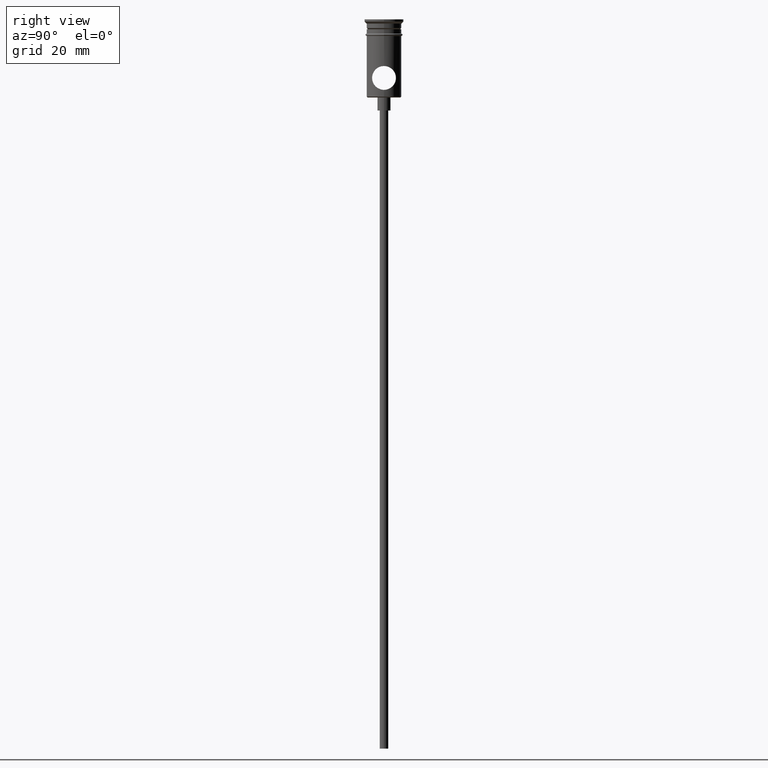
[diagram: clean part render]
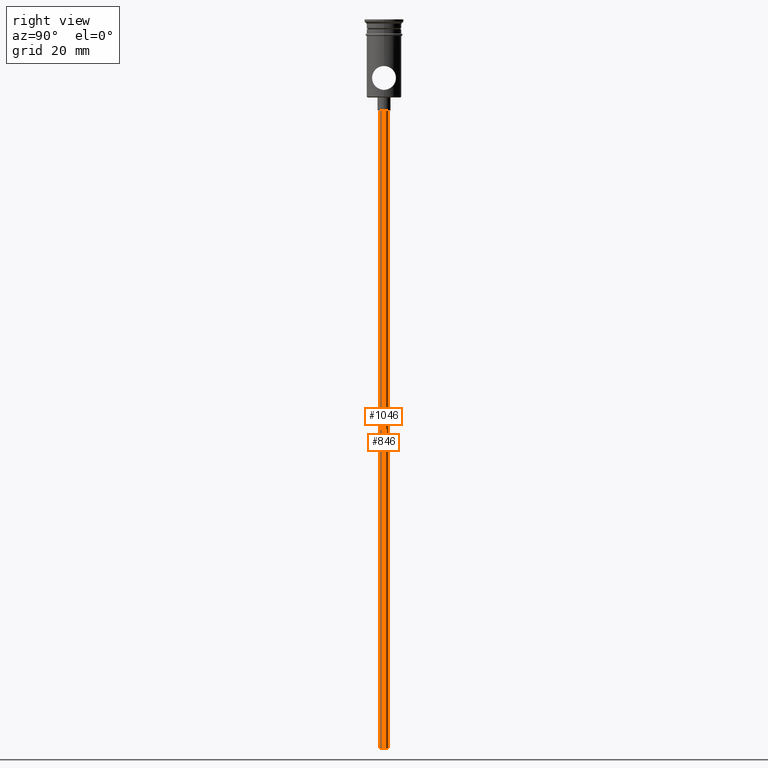
[diagram: same view with one multi-face feature highlighted, each face labeled with its STEP entity id]
A machine part, right view. The highlighted faces form ONE feature: a constant-radius fillet chain: 2 tangent blend faces with common blend radius 1 mm. The faces share edges in the B-rep.
Their STEP definitions:
[1] entity #1046 (Cylinder):
#35 = CARTESIAN_POINT ( 'NONE',  ( 0.9999999999999997780, 0.000000000000000000, -167.9999999999999716 ) ) ;
#68 = ORIENTED_EDGE ( 'NONE', *, *, #696, .T. ) ;
#71 = EDGE_LOOP ( 'NONE', ( #380, #670, #68, #663 ) ) ;
#81 = CARTESIAN_POINT ( 'NONE',  ( 0.000000000000000000, 0.000000000000000000, -167.9999999999999716 ) ) ;
#88 = CARTESIAN_POINT ( 'NONE',  ( -0.9999999999999997780, 1.224646799147352961E-16, -167.9999999999999716 ) ) ;
#90 = EDGE_CURVE ( 'NONE', #775, #277, #1202, .T. ) ;
#94 = LINE ( 'NONE', #88, #302 ) ;
#115 = AXIS2_PLACEMENT_3D ( 'NONE', #81, #255, #306 ) ;
#181 = CYLINDRICAL_SURFACE ( 'NONE', #115, 0.9999999999999997780 ) ;
#194 = CARTESIAN_POINT ( 'NONE',  ( -0.9999999999999997780, 1.224646799147352961E-16, -167.9999999999999716 ) ) ;
#195 = CARTESIAN_POINT ( 'NONE',  ( 0.9999999999999997780, 0.000000000000000000, -167.9999999999999716 ) ) ;
#215 = DIRECTION ( 'NONE',  ( -0.000000000000000000, -0.000000000000000000, 1.000000000000000000 ) ) ;
#255 = DIRECTION ( 'NONE',  ( -0.000000000000000000, -0.000000000000000000, 1.000000000000000000 ) ) ;
#277 = VERTEX_POINT ( 'NONE', #956 ) ;
#302 = VECTOR ( 'NONE', #1158, 1000.000000000000000 ) ;
#306 = DIRECTION ( 'NONE',  ( 1.000000000000000000, 0.000000000000000000, 0.000000000000000000 ) ) ;
#325 = LINE ( 'NONE', #195, #379 ) ;
#379 = VECTOR ( 'NONE', #215, 1000.000000000000000 ) ;
#380 = ORIENTED_EDGE ( 'NONE', *, *, #1378, .F. ) ;
#381 = CIRCLE ( 'NONE', #1082, 0.9999999999999997780 ) ;
#408 = CARTESIAN_POINT ( 'NONE',  ( 0.000000000000000000, 0.000000000000000000, -20.99999999999999645 ) ) ;
#488 = DIRECTION ( 'NONE',  ( 0.000000000000000000, 0.000000000000000000, -1.000000000000000000 ) ) ;
#597 = DIRECTION ( 'NONE',  ( -1.000000000000000000, 0.000000000000000000, 0.000000000000000000 ) ) ;
#663 = ORIENTED_EDGE ( 'NONE', *, *, #90, .T. ) ;
#670 = ORIENTED_EDGE ( 'NONE', *, *, #943, .F. ) ;
#696 = EDGE_CURVE ( 'NONE', #1072, #775, #325, .T. ) ;
#775 = VERTEX_POINT ( 'NONE', #968 ) ;
#832 = DIRECTION ( 'NONE',  ( 0.000000000000000000, 0.000000000000000000, -1.000000000000000000 ) ) ;
#937 = CARTESIAN_POINT ( 'NONE',  ( 0.000000000000000000, 0.000000000000000000, -167.9999999999999716 ) ) ;
#943 = EDGE_CURVE ( 'NONE', #1072, #1054, #381, .T. ) ;
#952 = AXIS2_PLACEMENT_3D ( 'NONE', #408, #832, #1399 ) ;
#956 = CARTESIAN_POINT ( 'NONE',  ( -0.9999999999999997780, 1.224646799147352961E-16, -20.99999999999999645 ) ) ;
#968 = CARTESIAN_POINT ( 'NONE',  ( 0.9999999999999997780, 0.000000000000000000, -20.99999999999999645 ) ) ;
#1044 = FACE_OUTER_BOUND ( 'NONE', #71, .T. ) ;
#1046 = ADVANCED_FACE ( 'NONE', ( #1044 ), #181, .T. ) ;
#1054 = VERTEX_POINT ( 'NONE', #194 ) ;
#1072 = VERTEX_POINT ( 'NONE', #35 ) ;
#1082 = AXIS2_PLACEMENT_3D ( 'NONE', #937, #488, #597 ) ;
#1158 = DIRECTION ( 'NONE',  ( -0.000000000000000000, -0.000000000000000000, 1.000000000000000000 ) ) ;
#1202 = CIRCLE ( 'NONE', #952, 0.9999999999999997780 ) ;
#1378 = EDGE_CURVE ( 'NONE', #1054, #277, #94, .T. ) ;
#1399 = DIRECTION ( 'NONE',  ( -1.000000000000000000, 0.000000000000000000, 0.000000000000000000 ) ) ;
[2] entity #846 (Cylinder):
#35 = CARTESIAN_POINT ( 'NONE',  ( 0.9999999999999997780, 0.000000000000000000, -167.9999999999999716 ) ) ;
#42 = ORIENTED_EDGE ( 'NONE', *, *, #350, .T. ) ;
#88 = CARTESIAN_POINT ( 'NONE',  ( -0.9999999999999997780, 1.224646799147352961E-16, -167.9999999999999716 ) ) ;
#94 = LINE ( 'NONE', #88, #302 ) ;
#118 = DIRECTION ( 'NONE',  ( -1.000000000000000000, 0.000000000000000000, 0.000000000000000000 ) ) ;
#161 = AXIS2_PLACEMENT_3D ( 'NONE', #1292, #827, #1179 ) ;
#194 = CARTESIAN_POINT ( 'NONE',  ( -0.9999999999999997780, 1.224646799147352961E-16, -167.9999999999999716 ) ) ;
#195 = CARTESIAN_POINT ( 'NONE',  ( 0.9999999999999997780, 0.000000000000000000, -167.9999999999999716 ) ) ;
#215 = DIRECTION ( 'NONE',  ( -0.000000000000000000, -0.000000000000000000, 1.000000000000000000 ) ) ;
#244 = CIRCLE ( 'NONE', #900, 0.9999999999999997780 ) ;
#266 = ORIENTED_EDGE ( 'NONE', *, *, #696, .F. ) ;
#277 = VERTEX_POINT ( 'NONE', #956 ) ;
#302 = VECTOR ( 'NONE', #1158, 1000.000000000000000 ) ;
#325 = LINE ( 'NONE', #195, #379 ) ;
#350 = EDGE_CURVE ( 'NONE', #277, #775, #1344, .T. ) ;
#379 = VECTOR ( 'NONE', #215, 1000.000000000000000 ) ;
#405 = CYLINDRICAL_SURFACE ( 'NONE', #161, 0.9999999999999997780 ) ;
#410 = DIRECTION ( 'NONE',  ( -1.000000000000000000, 0.000000000000000000, 0.000000000000000000 ) ) ;
#434 = DIRECTION ( 'NONE',  ( 0.000000000000000000, 0.000000000000000000, -1.000000000000000000 ) ) ;
#696 = EDGE_CURVE ( 'NONE', #1072, #775, #325, .T. ) ;
#756 = CARTESIAN_POINT ( 'NONE',  ( 0.000000000000000000, 0.000000000000000000, -20.99999999999999645 ) ) ;
#775 = VERTEX_POINT ( 'NONE', #968 ) ;
#827 = DIRECTION ( 'NONE',  ( -0.000000000000000000, -0.000000000000000000, 1.000000000000000000 ) ) ;
#833 = AXIS2_PLACEMENT_3D ( 'NONE', #756, #434, #118 ) ;
#846 = ADVANCED_FACE ( 'NONE', ( #1273 ), #405, .T. ) ;
#887 = EDGE_CURVE ( 'NONE', #1054, #1072, #244, .T. ) ;
#900 = AXIS2_PLACEMENT_3D ( 'NONE', #961, #1071, #410 ) ;
#956 = CARTESIAN_POINT ( 'NONE',  ( -0.9999999999999997780, 1.224646799147352961E-16, -20.99999999999999645 ) ) ;
#961 = CARTESIAN_POINT ( 'NONE',  ( 0.000000000000000000, 0.000000000000000000, -167.9999999999999716 ) ) ;
#968 = CARTESIAN_POINT ( 'NONE',  ( 0.9999999999999997780, 0.000000000000000000, -20.99999999999999645 ) ) ;
#1054 = VERTEX_POINT ( 'NONE', #194 ) ;
#1071 = DIRECTION ( 'NONE',  ( 0.000000000000000000, 0.000000000000000000, -1.000000000000000000 ) ) ;
#1072 = VERTEX_POINT ( 'NONE', #35 ) ;
#1077 = ORIENTED_EDGE ( 'NONE', *, *, #1378, .T. ) ;
#1108 = ORIENTED_EDGE ( 'NONE', *, *, #887, .F. ) ;
#1158 = DIRECTION ( 'NONE',  ( -0.000000000000000000, -0.000000000000000000, 1.000000000000000000 ) ) ;
#1179 = DIRECTION ( 'NONE',  ( 1.000000000000000000, 0.000000000000000000, 0.000000000000000000 ) ) ;
#1273 = FACE_OUTER_BOUND ( 'NONE', #1286, .T. ) ;
#1286 = EDGE_LOOP ( 'NONE', ( #1108, #1077, #42, #266 ) ) ;
#1292 = CARTESIAN_POINT ( 'NONE',  ( 0.000000000000000000, 0.000000000000000000, -167.9999999999999716 ) ) ;
#1344 = CIRCLE ( 'NONE', #833, 0.9999999999999997780 ) ;
#1378 = EDGE_CURVE ( 'NONE', #1054, #277, #94, .T. ) ;